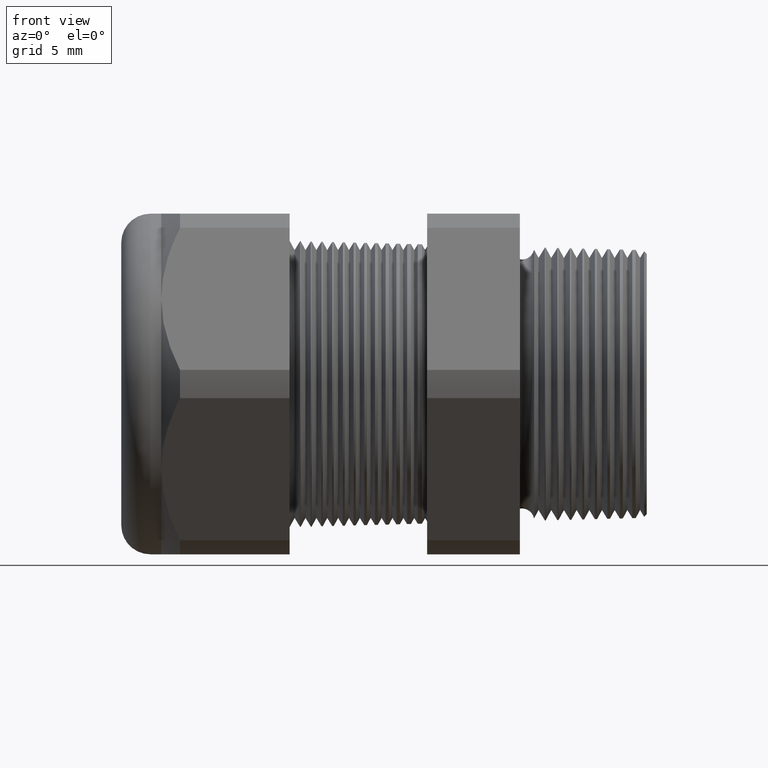
[diagram: clean part render]
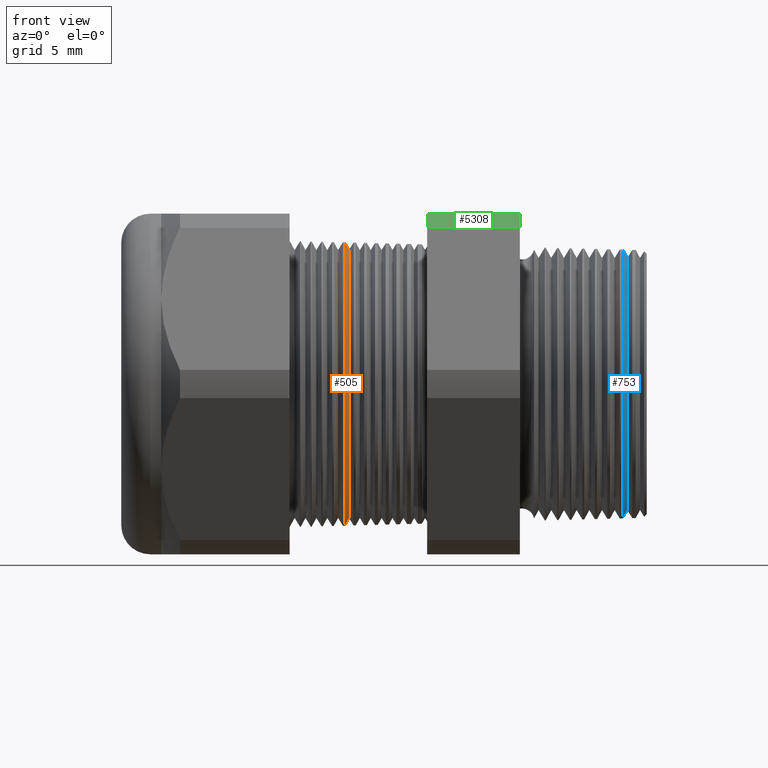
[diagram: same view with three faces highlighted in distinct colors, each labeled with its STEP entity id]
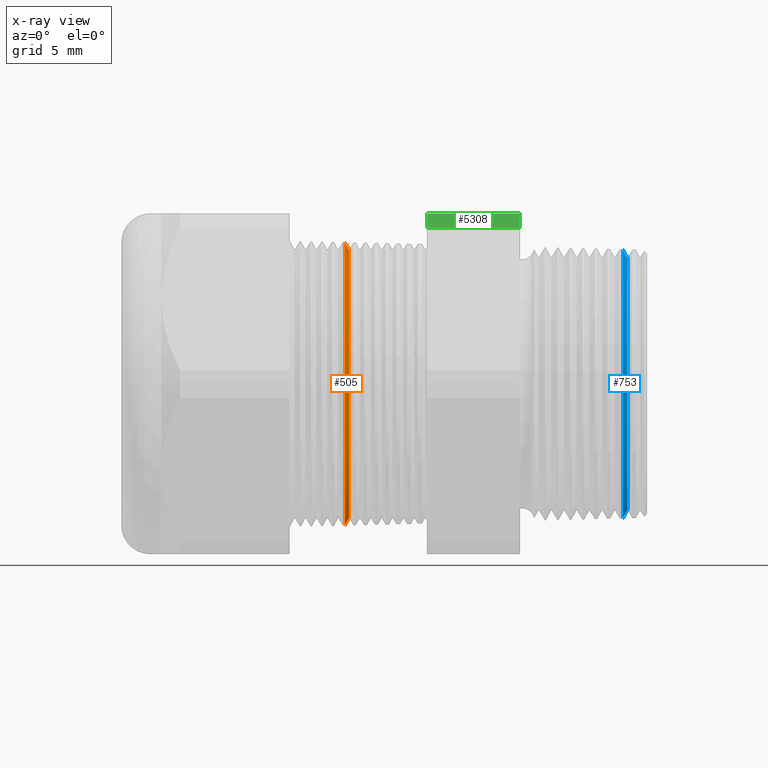
[diagram: x-ray of the same camera — body ghosted, the three highlighted faces saturated]
A machine part, front view with three faces highlighted in distinct colors.
The next image is the same camera in x-ray (body ghosted, the three faces saturated) — at least one of them is partly hidden behind the body in this view.
Their STEP definitions:

[orange] entity #505 — the highlighted conical surface has half-angle 61.5 deg.
#168 = VERTEX_POINT ( 'NONE', #1617 ) ;
#171 = VERTEX_POINT ( 'NONE', #1611 ) ;
#173 = EDGE_CURVE ( 'NONE', #183, #171, #1610, .T. ) ;
#182 = VERTEX_POINT ( 'NONE', #1652 ) ;
#183 = VERTEX_POINT ( 'NONE', #1651 ) ;
#249 = EDGE_CURVE ( 'NONE', #182, #168, #1780, .T. ) ;
#505 = ADVANCED_FACE ( 'NONE', ( #2143 ), #2138, .T. ) ;
#506 = EDGE_LOOP ( 'NONE', ( #507, #508, #510, #564 ) ) ;
#507 = ORIENTED_EDGE ( 'NONE', *, *, #249, .F. ) ;
#508 = ORIENTED_EDGE ( 'NONE', *, *, #509, .F. ) ;
#509 = EDGE_CURVE ( 'NONE', #183, #182, #2137, .T. ) ;
#510 = ORIENTED_EDGE ( 'NONE', *, *, #173, .T. ) ;
#564 = ORIENTED_EDGE ( 'NONE', *, *, #3139, .T. ) ;
#1607 = DIRECTION ( 'NONE',  ( -0.4771587602596191200, 0.0000000000000000000, 0.8788171126619595000 ) ) ;
#1608 = VECTOR ( 'NONE', #1607, 39.37007874015748100 ) ;
#1609 = CARTESIAN_POINT ( 'NONE',  ( -0.7954330708661420100, 0.0000000000000000000, 0.3950000000000000200 ) ) ;
#1610 = LINE ( 'NONE', #1609, #1608 ) ;
#1611 = CARTESIAN_POINT ( 'NONE',  ( -0.7932696423776625100, 0.0000000000000000000, 0.3910154603959032400 ) ) ;
#1617 = CARTESIAN_POINT ( 'NONE',  ( -0.7932696423776625100, 4.789392262317096300E-017, -0.3910154603959032400 ) ) ;
#1651 = CARTESIAN_POINT ( 'NONE',  ( -0.7816586839320379700, 0.0000000000000000000, 0.3696307351718083300 ) ) ;
#1652 = CARTESIAN_POINT ( 'NONE',  ( -0.7816586839320379700, 4.657614643428047800E-017, -0.3696307351718083300 ) ) ;
#1777 = DIRECTION ( 'NONE',  ( -0.4771587602596191200, 1.076240564057387800E-016, -0.8788171126619595000 ) ) ;
#1778 = VECTOR ( 'NONE', #1777, 39.37007874015748100 ) ;
#1779 = CARTESIAN_POINT ( 'NONE',  ( -0.7954330708661420100, 4.837354856632045600E-017, -0.3950000000000000200 ) ) ;
#1780 = LINE ( 'NONE', #1779, #1778 ) ;
#2135 = CARTESIAN_POINT ( 'NONE',  ( -0.7954330708661420100, 0.0000000000000000000, 0.0000000000000000000 ) ) ;
#2136 = AXIS2_PLACEMENT_3D ( 'NONE', #2135, #2197, #2196 ) ;
#2137 = CIRCLE ( 'NONE', #2195, 0.3696307351718083300 ) ;
#2138 = CONICAL_SURFACE ( 'NONE', #2136, 0.3950000000000000200, 1.073377489976500500 ) ;
#2143 = FACE_OUTER_BOUND ( 'NONE', #506, .T. ) ;
#2192 = DIRECTION ( 'NONE',  ( 0.0000000000000000000, 0.0000000000000000000, -1.000000000000000000 ) ) ;
#2193 = DIRECTION ( 'NONE',  ( 1.000000000000000000, 0.0000000000000000000, 0.0000000000000000000 ) ) ;
#2194 = CARTESIAN_POINT ( 'NONE',  ( -0.7816586839320379700, 0.0000000000000000000, 0.0000000000000000000 ) ) ;
#2195 = AXIS2_PLACEMENT_3D ( 'NONE', #2194, #2193, #2192 ) ;
#2196 = DIRECTION ( 'NONE',  ( 0.0000000000000000000, 0.0000000000000000000, 1.000000000000000000 ) ) ;
#2197 = DIRECTION ( 'NONE',  ( -1.000000000000000000, 0.0000000000000000000, 0.0000000000000000000 ) ) ;
#3139 = EDGE_CURVE ( 'NONE', #171, #168, #3979, .T. ) ;
#3976 = DIRECTION ( 'NONE',  ( 0.0000000000000000000, 0.0000000000000000000, 1.000000000000000000 ) ) ;
#3977 = DIRECTION ( 'NONE',  ( 1.000000000000000000, 0.0000000000000000000, 0.0000000000000000000 ) ) ;
#3978 = AXIS2_PLACEMENT_3D ( 'NONE', #3984, #3977, #3976 ) ;
#3979 = CIRCLE ( 'NONE', #3978, 0.3910154603959032400 ) ;
#3984 = CARTESIAN_POINT ( 'NONE',  ( -0.7932696423776625100, 0.0000000000000000000, 0.0000000000000000000 ) ) ;

[blue] entity #753 — the highlighted conical surface has half-angle 61.5 deg.
#677 = EDGE_LOOP ( 'NONE', ( #678, #679, #681, #682 ) ) ;
#678 = ORIENTED_EDGE ( 'NONE', *, *, #1229, .F. ) ;
#679 = ORIENTED_EDGE ( 'NONE', *, *, #680, .F. ) ;
#680 = EDGE_CURVE ( 'NONE', #1269, #1266, #2377, .T. ) ;
#681 = ORIENTED_EDGE ( 'NONE', *, *, #1275, .T. ) ;
#682 = ORIENTED_EDGE ( 'NONE', *, *, #3387, .T. ) ;
#753 = ADVANCED_FACE ( 'NONE', ( #2469 ), #2468, .T. ) ;
#1229 = EDGE_CURVE ( 'NONE', #1266, #1230, #3747, .T. ) ;
#1230 = VERTEX_POINT ( 'NONE', #3740 ) ;
#1233 = VERTEX_POINT ( 'NONE', #3734 ) ;
#1266 = VERTEX_POINT ( 'NONE', #3800 ) ;
#1269 = VERTEX_POINT ( 'NONE', #3794 ) ;
#1275 = EDGE_CURVE ( 'NONE', #1269, #1233, #3841, .T. ) ;
#2369 = DIRECTION ( 'NONE',  ( 0.0000000000000000000, 0.0000000000000000000, -1.000000000000000000 ) ) ;
#2370 = DIRECTION ( 'NONE',  ( 1.000000000000000000, 0.0000000000000000000, 0.0000000000000000000 ) ) ;
#2371 = CARTESIAN_POINT ( 'NONE',  ( -0.01347073567907512900, 0.0000000000000000000, 0.0000000000000000000 ) ) ;
#2372 = AXIS2_PLACEMENT_3D ( 'NONE', #2371, #2370, #2369 ) ;
#2377 = CIRCLE ( 'NONE', #2372, 0.3479174816500060800 ) ;
#2464 = DIRECTION ( 'NONE',  ( 0.0000000000000000000, 0.0000000000000000000, 1.000000000000000000 ) ) ;
#2465 = DIRECTION ( 'NONE',  ( -1.000000000000000000, 0.0000000000000000000, 0.0000000000000000000 ) ) ;
#2466 = CARTESIAN_POINT ( 'NONE',  ( -0.02999999999999995400, 0.0000000000000000000, 0.0000000000000000000 ) ) ;
#2467 = AXIS2_PLACEMENT_3D ( 'NONE', #2466, #2465, #2464 ) ;
#2468 = CONICAL_SURFACE ( 'NONE', #2467, 0.3783605994438361000, 1.073377489976500100 ) ;
#2469 = FACE_OUTER_BOUND ( 'NONE', #677, .T. ) ;
#3387 = EDGE_CURVE ( 'NONE', #1233, #1230, #4448, .T. ) ;
#3734 = CARTESIAN_POINT ( 'NONE',  ( -0.02596160015483822700, 0.0000000000000000000, 0.3709227921828554000 ) ) ;
#3740 = CARTESIAN_POINT ( 'NONE',  ( -0.02596160015483822700, 4.543821516315070200E-017, -0.3709227921828554000 ) ) ;
#3741 = DIRECTION ( 'NONE',  ( -0.4771587602596195100, 1.076240564057387400E-016, -0.8788171126619593900 ) ) ;
#3742 = VECTOR ( 'NONE', #3741, 39.37007874015748100 ) ;
#3743 = CARTESIAN_POINT ( 'NONE',  ( -0.02999999999999995400, 4.633580970323677100E-017, -0.3783605994438361000 ) ) ;
#3747 = LINE ( 'NONE', #3743, #3742 ) ;
#3794 = CARTESIAN_POINT ( 'NONE',  ( -0.01347073567907512900, 0.0000000000000000000, 0.3479174816500060800 ) ) ;
#3800 = CARTESIAN_POINT ( 'NONE',  ( -0.01347073567907512900, 4.401627202238103200E-017, -0.3479174816500060800 ) ) ;
#3838 = DIRECTION ( 'NONE',  ( -0.4771587602596195100, 0.0000000000000000000, 0.8788171126619593900 ) ) ;
#3839 = VECTOR ( 'NONE', #3838, 39.37007874015748100 ) ;
#3840 = CARTESIAN_POINT ( 'NONE',  ( -0.02999999999999995400, 0.0000000000000000000, 0.3783605994438361000 ) ) ;
#3841 = LINE ( 'NONE', #3840, #3839 ) ;
#4445 = DIRECTION ( 'NONE',  ( 0.0000000000000000000, 0.0000000000000000000, 1.000000000000000000 ) ) ;
#4446 = DIRECTION ( 'NONE',  ( 1.000000000000000000, 0.0000000000000000000, 0.0000000000000000000 ) ) ;
#4447 = AXIS2_PLACEMENT_3D ( 'NONE', #4452, #4446, #4445 ) ;
#4448 = CIRCLE ( 'NONE', #4447, 0.3709227921828554000 ) ;
#4452 = CARTESIAN_POINT ( 'NONE',  ( -0.02596160015483822700, 0.0000000000000000000, 0.0000000000000000000 ) ) ;

[green] entity #5308 — the highlighted cylindrical surface (partial cylindrical patch) has radius 13.2512 mm, axis along (-1, 0, 0).
#3155 = VERTEX_POINT ( 'NONE', #4014 ) ;
#3165 = EDGE_CURVE ( 'NONE', #3193, #3155, #3990, .T. ) ;
#3193 = VERTEX_POINT ( 'NONE', #4058 ) ;
#3987 = DIRECTION ( 'NONE',  ( 0.0000000000000000000, 0.0000000000000000000, -1.000000000000000000 ) ) ;
#3988 = DIRECTION ( 'NONE',  ( 1.000000000000000000, 0.0000000000000000000, 0.0000000000000000000 ) ) ;
#3989 = AXIS2_PLACEMENT_3D ( 'NONE', #3996, #3988, #3987 ) ;
#3990 = CIRCLE ( 'NONE', #3989, 0.5217000000000000500 ) ;
#3996 = CARTESIAN_POINT ( 'NONE',  ( -0.3100000000000000000, 0.0000000000000000000, 0.0000000000000000000 ) ) ;
#4014 = CARTESIAN_POINT ( 'NONE',  ( -0.3100000000000000000, -0.2938165587564948700, 0.4310947921287048800 ) ) ;
#4058 = CARTESIAN_POINT ( 'NONE',  ( -0.3100000000000000000, -0.2264307620443835600, 0.4699999999999997500 ) ) ;
#4832 = DIRECTION ( 'NONE',  ( 0.0000000000000000000, 0.0000000000000000000, 1.000000000000000000 ) ) ;
#4833 = DIRECTION ( 'NONE',  ( -1.000000000000000000, 0.0000000000000000000, 0.0000000000000000000 ) ) ;
#4834 = CARTESIAN_POINT ( 'NONE',  ( 0.04000000000000011900, 0.0000000000000000000, 0.0000000000000000000 ) ) ;
#4835 = AXIS2_PLACEMENT_3D ( 'NONE', #4834, #4833, #4832 ) ;
#4837 = CYLINDRICAL_SURFACE ( 'NONE', #4835, 0.5217000000000000500 ) ;
#4838 = FACE_OUTER_BOUND ( 'NONE', #5340, .T. ) ;
#4839 = DIRECTION ( 'NONE',  ( -1.000000000000000000, 0.0000000000000000000, 0.0000000000000000000 ) ) ;
#4840 = VECTOR ( 'NONE', #4839, 39.37007874015748100 ) ;
#4841 = CARTESIAN_POINT ( 'NONE',  ( 0.04000000000000011900, -0.2938165587564948700, 0.4310947921287048800 ) ) ;
#4842 = LINE ( 'NONE', #4841, #4840 ) ;
#4889 = CARTESIAN_POINT ( 'NONE',  ( -0.5659055118110235500, -0.2938165587564948700, 0.4310947921287048800 ) ) ;
#4899 = DIRECTION ( 'NONE',  ( -1.000000000000000000, 0.0000000000000000000, 0.0000000000000000000 ) ) ;
#4900 = VECTOR ( 'NONE', #4899, 39.37007874015748100 ) ;
#4901 = CARTESIAN_POINT ( 'NONE',  ( 0.04000000000000011900, -0.2264307620443835600, 0.4699999999999997500 ) ) ;
#4902 = LINE ( 'NONE', #4901, #4900 ) ;
#4903 = CARTESIAN_POINT ( 'NONE',  ( -0.5659055118110235500, -0.2264307620443835600, 0.4699999999999997500 ) ) ;
#4904 = DIRECTION ( 'NONE',  ( 0.0000000000000000000, 0.0000000000000000000, 1.000000000000000000 ) ) ;
#4905 = DIRECTION ( 'NONE',  ( -1.000000000000000000, 0.0000000000000000000, 0.0000000000000000000 ) ) ;
#4906 = CARTESIAN_POINT ( 'NONE',  ( -0.5659055118110235500, 0.0000000000000000000, 0.0000000000000000000 ) ) ;
#4907 = AXIS2_PLACEMENT_3D ( 'NONE', #4906, #4905, #4904 ) ;
#4908 = CIRCLE ( 'NONE', #4907, 0.5217000000000000500 ) ;
#5307 = EDGE_CURVE ( 'NONE', #3155, #5311, #4842, .T. ) ;
#5308 = ADVANCED_FACE ( 'NONE', ( #4838 ), #4837, .T. ) ;
#5311 = VERTEX_POINT ( 'NONE', #4889 ) ;
#5334 = ORIENTED_EDGE ( 'NONE', *, *, #5338, .T. ) ;
#5335 = EDGE_CURVE ( 'NONE', #5311, #5337, #4908, .T. ) ;
#5336 = ORIENTED_EDGE ( 'NONE', *, *, #5307, .F. ) ;
#5337 = VERTEX_POINT ( 'NONE', #4903 ) ;
#5338 = EDGE_CURVE ( 'NONE', #3193, #5337, #4902, .T. ) ;
#5339 = ORIENTED_EDGE ( 'NONE', *, *, #3165, .F. ) ;
#5340 = EDGE_LOOP ( 'NONE', ( #5336, #5339, #5334, #5342 ) ) ;
#5342 = ORIENTED_EDGE ( 'NONE', *, *, #5335, .F. ) ;